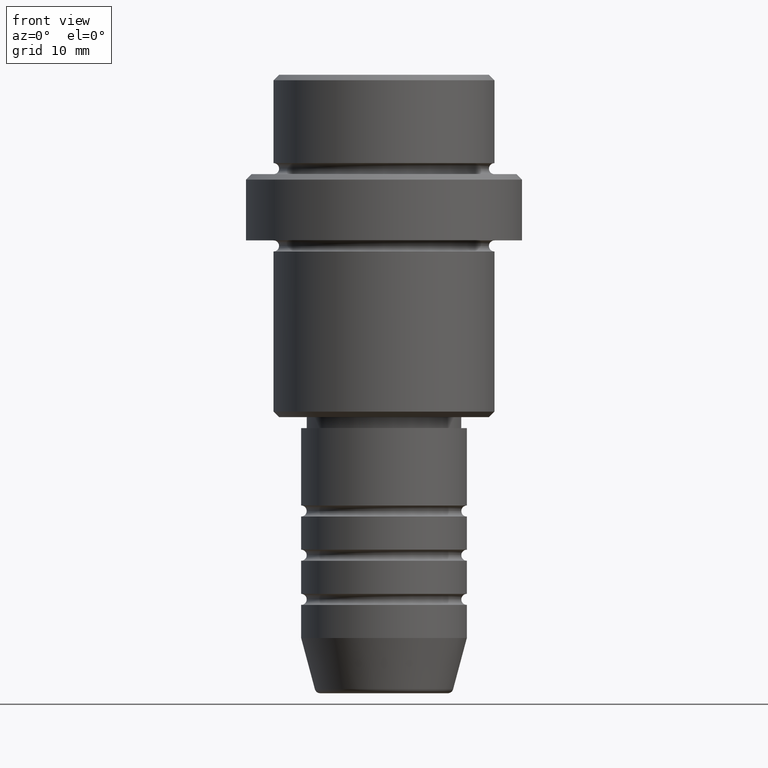
[diagram: clean part render]
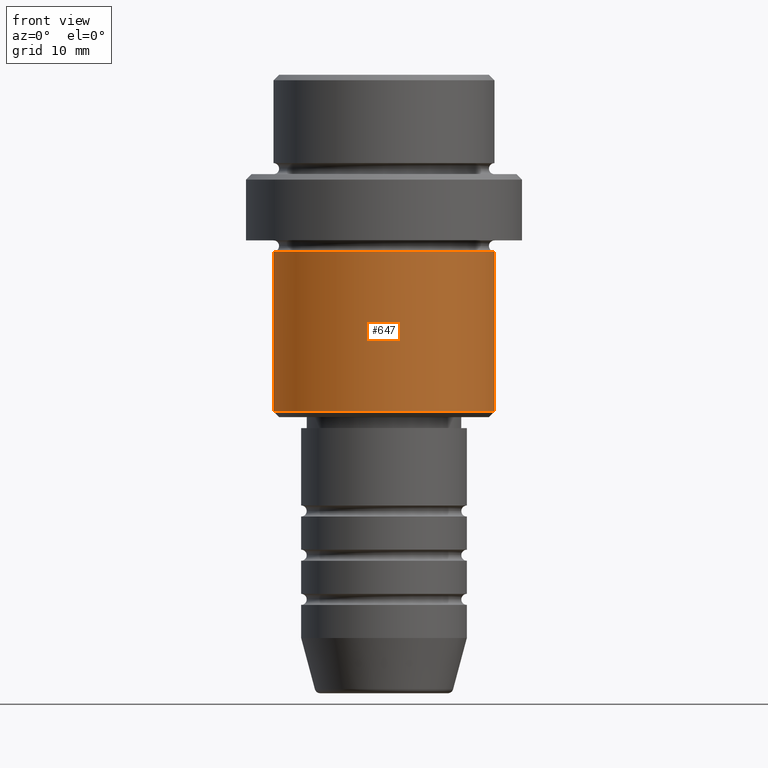
[diagram: same view with one face highlighted and labeled with its STEP entity id]
A machine part, front view. The second image highlights one B-rep face of the part: STEP entity #647.
In plain terms, the highlighted cylindrical surface (partial cylindrical patch) has radius 10 mm, axis along (-0, -0, 1).
Its self-contained STEP definition (entity closure, byte-faithful):
#51 = AXIS2_PLACEMENT_3D ( 'NONE', #675, #1153, #462 ) ;
#107 = CIRCLE ( 'NONE', #1084, 10.00000000000000000 ) ;
#137 = ORIENTED_EDGE ( 'NONE', *, *, #735, .F. ) ;
#138 = FACE_OUTER_BOUND ( 'NONE', #810, .T. ) ;
#195 = DIRECTION ( 'NONE',  ( 1.000000000000000000, 0.000000000000000000, 0.000000000000000000 ) ) ;
#227 = ORIENTED_EDGE ( 'NONE', *, *, #687, .T. ) ;
#313 = ORIENTED_EDGE ( 'NONE', *, *, #1386, .T. ) ;
#323 = VERTEX_POINT ( 'NONE', #621 ) ;
#353 = LINE ( 'NONE', #524, #1290 ) ;
#375 = VERTEX_POINT ( 'NONE', #1017 ) ;
#462 = DIRECTION ( 'NONE',  ( 1.000000000000000000, 0.000000000000000000, 0.000000000000000000 ) ) ;
#524 = CARTESIAN_POINT ( 'NONE',  ( 10.00000000000000000, 0.000000000000000000, 0.000000000000000000 ) ) ;
#529 = DIRECTION ( 'NONE',  ( -1.000000000000000000, 0.000000000000000000, 0.000000000000000000 ) ) ;
#539 = ORIENTED_EDGE ( 'NONE', *, *, #1049, .F. ) ;
#544 = CARTESIAN_POINT ( 'NONE',  ( -10.00000000000000000, 1.224646799147353256E-15, -30.50000000000001421 ) ) ;
#621 = CARTESIAN_POINT ( 'NONE',  ( 10.00000000000000000, 0.000000000000000000, -30.50000000000001421 ) ) ;
#630 = DIRECTION ( 'NONE',  ( -0.000000000000000000, -0.000000000000000000, 1.000000000000000000 ) ) ;
#643 = CARTESIAN_POINT ( 'NONE',  ( 0.000000000000000000, 0.000000000000000000, -30.50000000000001421 ) ) ;
#647 = ADVANCED_FACE ( 'NONE', ( #138 ), #1066, .T. ) ;
#675 = CARTESIAN_POINT ( 'NONE',  ( 0.000000000000000000, 0.000000000000000000, -16.00000000000000000 ) ) ;
#680 = DIRECTION ( 'NONE',  ( -0.000000000000000000, -0.000000000000000000, 1.000000000000000000 ) ) ;
#682 = CIRCLE ( 'NONE', #51, 10.00000000000000000 ) ;
#687 = EDGE_CURVE ( 'NONE', #323, #700, #353, .T. ) ;
#700 = VERTEX_POINT ( 'NONE', #1143 ) ;
#735 = EDGE_CURVE ( 'NONE', #375, #700, #682, .T. ) ;
#765 = CARTESIAN_POINT ( 'NONE',  ( -10.00000000000000000, 1.224646799147353256E-15, 0.000000000000000000 ) ) ;
#780 = VECTOR ( 'NONE', #680, 1000.000000000000000 ) ;
#810 = EDGE_LOOP ( 'NONE', ( #539, #313, #227, #137 ) ) ;
#890 = AXIS2_PLACEMENT_3D ( 'NONE', #1383, #1299, #195 ) ;
#909 = DIRECTION ( 'NONE',  ( -0.000000000000000000, -0.000000000000000000, 1.000000000000000000 ) ) ;
#1017 = CARTESIAN_POINT ( 'NONE',  ( -10.00000000000000000, 1.224646799147353256E-15, -16.00000000000000000 ) ) ;
#1049 = EDGE_CURVE ( 'NONE', #1390, #375, #1205, .T. ) ;
#1066 = CYLINDRICAL_SURFACE ( 'NONE', #890, 10.00000000000000000 ) ;
#1084 = AXIS2_PLACEMENT_3D ( 'NONE', #643, #630, #529 ) ;
#1143 = CARTESIAN_POINT ( 'NONE',  ( 10.00000000000000000, 0.000000000000000000, -16.00000000000000000 ) ) ;
#1153 = DIRECTION ( 'NONE',  ( -0.000000000000000000, -0.000000000000000000, 1.000000000000000000 ) ) ;
#1205 = LINE ( 'NONE', #765, #780 ) ;
#1290 = VECTOR ( 'NONE', #909, 1000.000000000000000 ) ;
#1299 = DIRECTION ( 'NONE',  ( -0.000000000000000000, -0.000000000000000000, 1.000000000000000000 ) ) ;
#1383 = CARTESIAN_POINT ( 'NONE',  ( 0.000000000000000000, 0.000000000000000000, 0.000000000000000000 ) ) ;
#1386 = EDGE_CURVE ( 'NONE', #1390, #323, #107, .T. ) ;
#1390 = VERTEX_POINT ( 'NONE', #544 ) ;